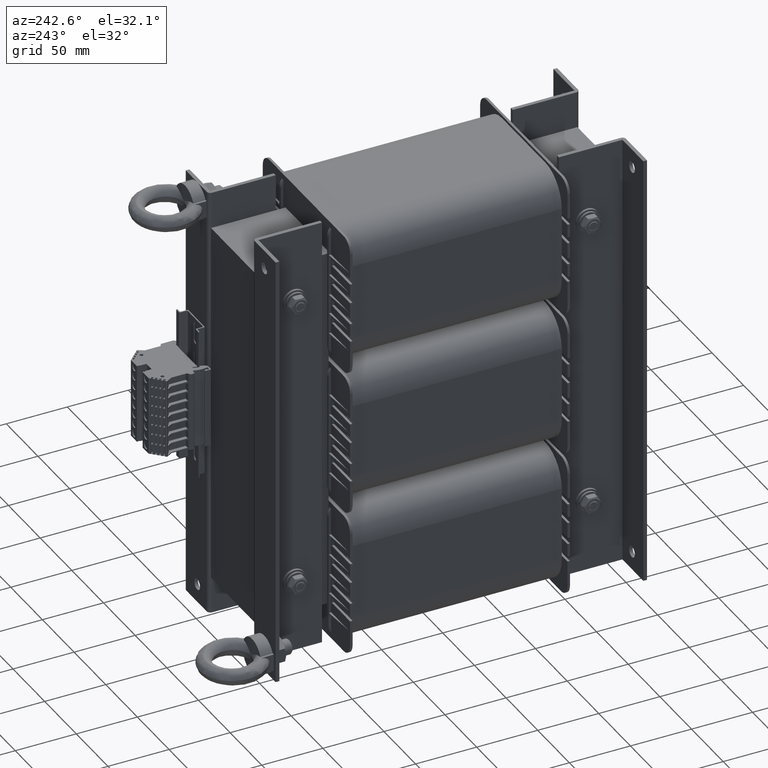
[diagram: clean part render]
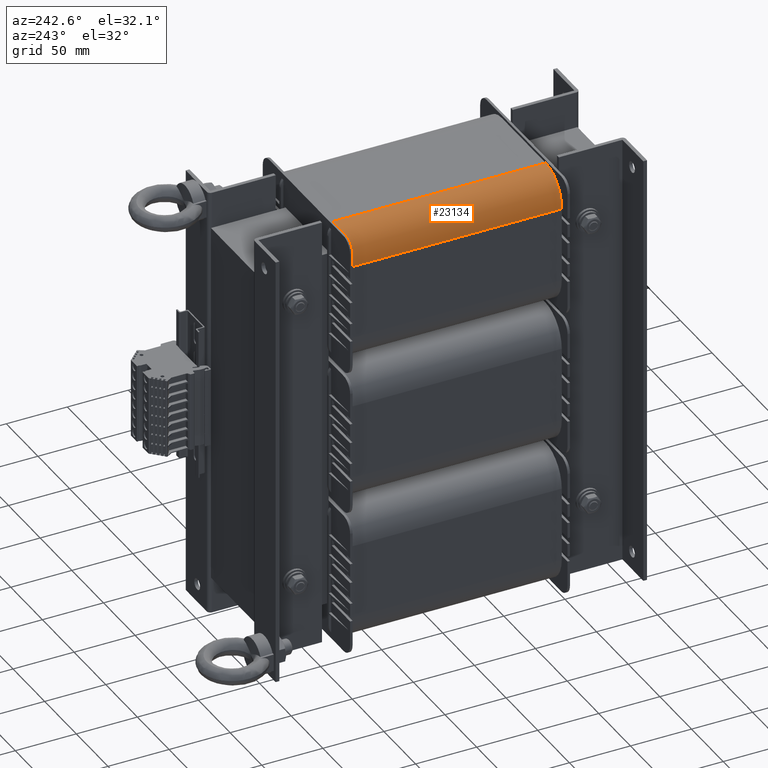
[diagram: same view with one face highlighted and labeled with its STEP entity id]
A machine part, auxiliary view. The second image highlights one B-rep face of the part: STEP entity #23134.
In plain terms, the highlighted cylindrical surface (edge-blend (fillet) strip) has radius 25.3692 mm, axis along (-0, 1, -0).
Its self-contained STEP definition (entity closure, byte-faithful):
#1108=CIRCLE('',#24731,25.3691630029813);
#1109=CIRCLE('',#24732,25.3691630029813);
#1729=CYLINDRICAL_SURFACE('',#24730,25.3691630029813);
#2058=FACE_OUTER_BOUND('',#3305,.T.);
#3305=EDGE_LOOP('',(#15658,#15659,#15660,#15661));
#4671=LINE('',#33535,#7307);
#4694=LINE('',#33582,#7330);
#7307=VECTOR('',#26865,10.);
#7330=VECTOR('',#26912,10.);
#9930=VERTEX_POINT('',#33532);
#9931=VERTEX_POINT('',#33534);
#9942=VERTEX_POINT('',#33579);
#9943=VERTEX_POINT('',#33581);
#12167=EDGE_CURVE('',#9930,#9931,#4671,.T.);
#12196=EDGE_CURVE('',#9943,#9942,#4694,.T.);
#12198=EDGE_CURVE('',#9931,#9942,#1108,.T.);
#12199=EDGE_CURVE('',#9943,#9930,#1109,.T.);
#15658=ORIENTED_EDGE('',*,*,#12198,.F.);
#15659=ORIENTED_EDGE('',*,*,#12167,.F.);
#15660=ORIENTED_EDGE('',*,*,#12199,.F.);
#15661=ORIENTED_EDGE('',*,*,#12196,.T.);
#23134=ADVANCED_FACE('',(#2058),#1729,.T.);
#24730=AXIS2_PLACEMENT_3D('',#33584,#26914,#26915);
#24731=AXIS2_PLACEMENT_3D('',#33585,#26916,#26917);
#24732=AXIS2_PLACEMENT_3D('',#33586,#26918,#26919);
#26865=DIRECTION('',(0.,1.,0.));
#26912=DIRECTION('',(0.,1.,0.));
#26914=DIRECTION('center_axis',(0.,1.,0.));
#26915=DIRECTION('ref_axis',(-1.,0.,9.78008779848481E-13));
#26916=DIRECTION('center_axis',(0.,1.,0.));
#26917=DIRECTION('ref_axis',(-1.,0.,9.78008779848481E-13));
#26918=DIRECTION('center_axis',(0.,-1.,0.));
#26919=DIRECTION('ref_axis',(-1.,0.,9.78008779848481E-13));
#33532=CARTESIAN_POINT('',(-64.8691630029813,2.,30.5000000000248));
#33534=CARTESIAN_POINT('',(-64.8691630029813,178.,30.5000000000248));
#33535=CARTESIAN_POINT('',(-64.8691630029813,2.,30.5000000000248));
#33579=CARTESIAN_POINT('',(-39.4999999999709,178.,55.8691630029813));
#33581=CARTESIAN_POINT('',(-39.4999999999709,2.,55.8691630029813));
#33582=CARTESIAN_POINT('',(-39.4999999999709,2.,55.8691630029813));
#33584=CARTESIAN_POINT('Origin',(-39.5,2.,30.5));
#33585=CARTESIAN_POINT('Origin',(-39.5,178.,30.5));
#33586=CARTESIAN_POINT('Origin',(-39.5,2.,30.5));